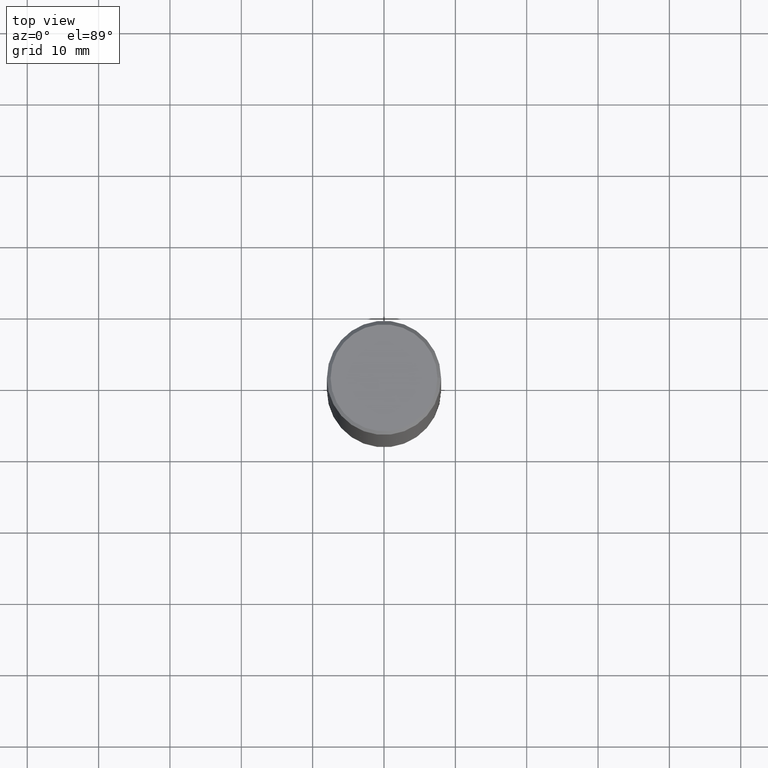
[diagram: clean part render]
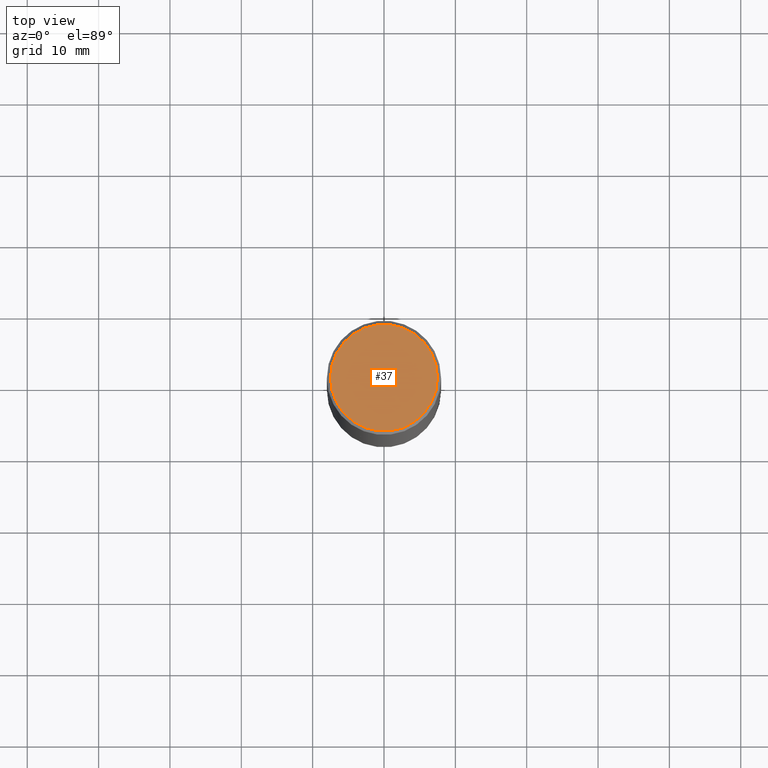
[diagram: same view with one face highlighted and labeled with its STEP entity id]
A machine part, top view. The second image highlights one B-rep face of the part: STEP entity #37.
In plain terms, the highlighted planar face has unit normal (0, -0, -1).
Its self-contained STEP definition (entity closure, byte-faithful):
#1 = VERTEX_POINT ( 'NONE', #165 ) ;
#2 = DIRECTION ( 'NONE',  ( -2.445468806185136597E-29, 3.491481338843145583E-15, 1.000000000000000000 ) ) ;
#18 = VERTEX_POINT ( 'NONE', #162 ) ;
#37 = ADVANCED_FACE ( 'NONE', ( #158 ), #190, .F. ) ;
#42 = CARTESIAN_POINT ( 'NONE',  ( -2.087702828670439639E-46, 2.980686340760894400E-32, 8.537024980200822558E-18 ) ) ;
#53 = DIRECTION ( 'NONE',  ( -1.000000000000000000, 6.982962677686265922E-15, -4.876176775795935793E-29 ) ) ;
#74 = DIRECTION ( 'NONE',  ( 1.000000000000000000, -6.982962677686267499E-15, 4.876053491004739391E-29 ) ) ;
#79 = DIRECTION ( 'NONE',  ( -2.445468806185136597E-29, 3.491481338843145583E-15, 1.000000000000000000 ) ) ;
#92 = DIRECTION ( 'NONE',  ( 1.000000000000000000, -6.982962677686267499E-15, 4.876053491004739391E-29 ) ) ;
#101 = AXIS2_PLACEMENT_3D ( 'NONE', #192, #107, #53 ) ;
#107 = DIRECTION ( 'NONE',  ( 2.438088387897960049E-29, -3.491481338843145188E-15, -1.000000000000000000 ) ) ;
#158 = FACE_OUTER_BOUND ( 'NONE', #159, .T. ) ;
#159 = EDGE_LOOP ( 'NONE', ( #341, #216 ) ) ;
#162 = CARTESIAN_POINT ( 'NONE',  ( -0.2949499999999997124, 2.094539655171993740E-15, 8.537024980186296424E-18 ) ) ;
#165 = CARTESIAN_POINT ( 'NONE',  ( 0.2949499999999997124, -2.127023677808858103E-15, 8.537024980215462707E-18 ) ) ;
#190 = PLANE ( 'NONE',  #101 ) ;
#192 = CARTESIAN_POINT ( 'NONE',  ( 2.059624841783562091E-15, 0.2949499999999997124, -1.025543908401684366E-15 ) ) ;
#216 = ORIENTED_EDGE ( 'NONE', *, *, #340, .T. ) ;
#228 = AXIS2_PLACEMENT_3D ( 'NONE', #42, #79, #74 ) ;
#252 = CIRCLE ( 'NONE', #228, 0.2949499999999997124 ) ;
#254 = EDGE_CURVE ( 'NONE', #18, #1, #360, .T. ) ;
#284 = CARTESIAN_POINT ( 'NONE',  ( -2.087702828670439639E-46, 2.980686340760894400E-32, 8.537024980200822558E-18 ) ) ;
#322 = AXIS2_PLACEMENT_3D ( 'NONE', #284, #2, #92 ) ;
#340 = EDGE_CURVE ( 'NONE', #1, #18, #252, .T. ) ;
#341 = ORIENTED_EDGE ( 'NONE', *, *, #254, .T. ) ;
#360 = CIRCLE ( 'NONE', #322, 0.2949499999999997124 ) ;